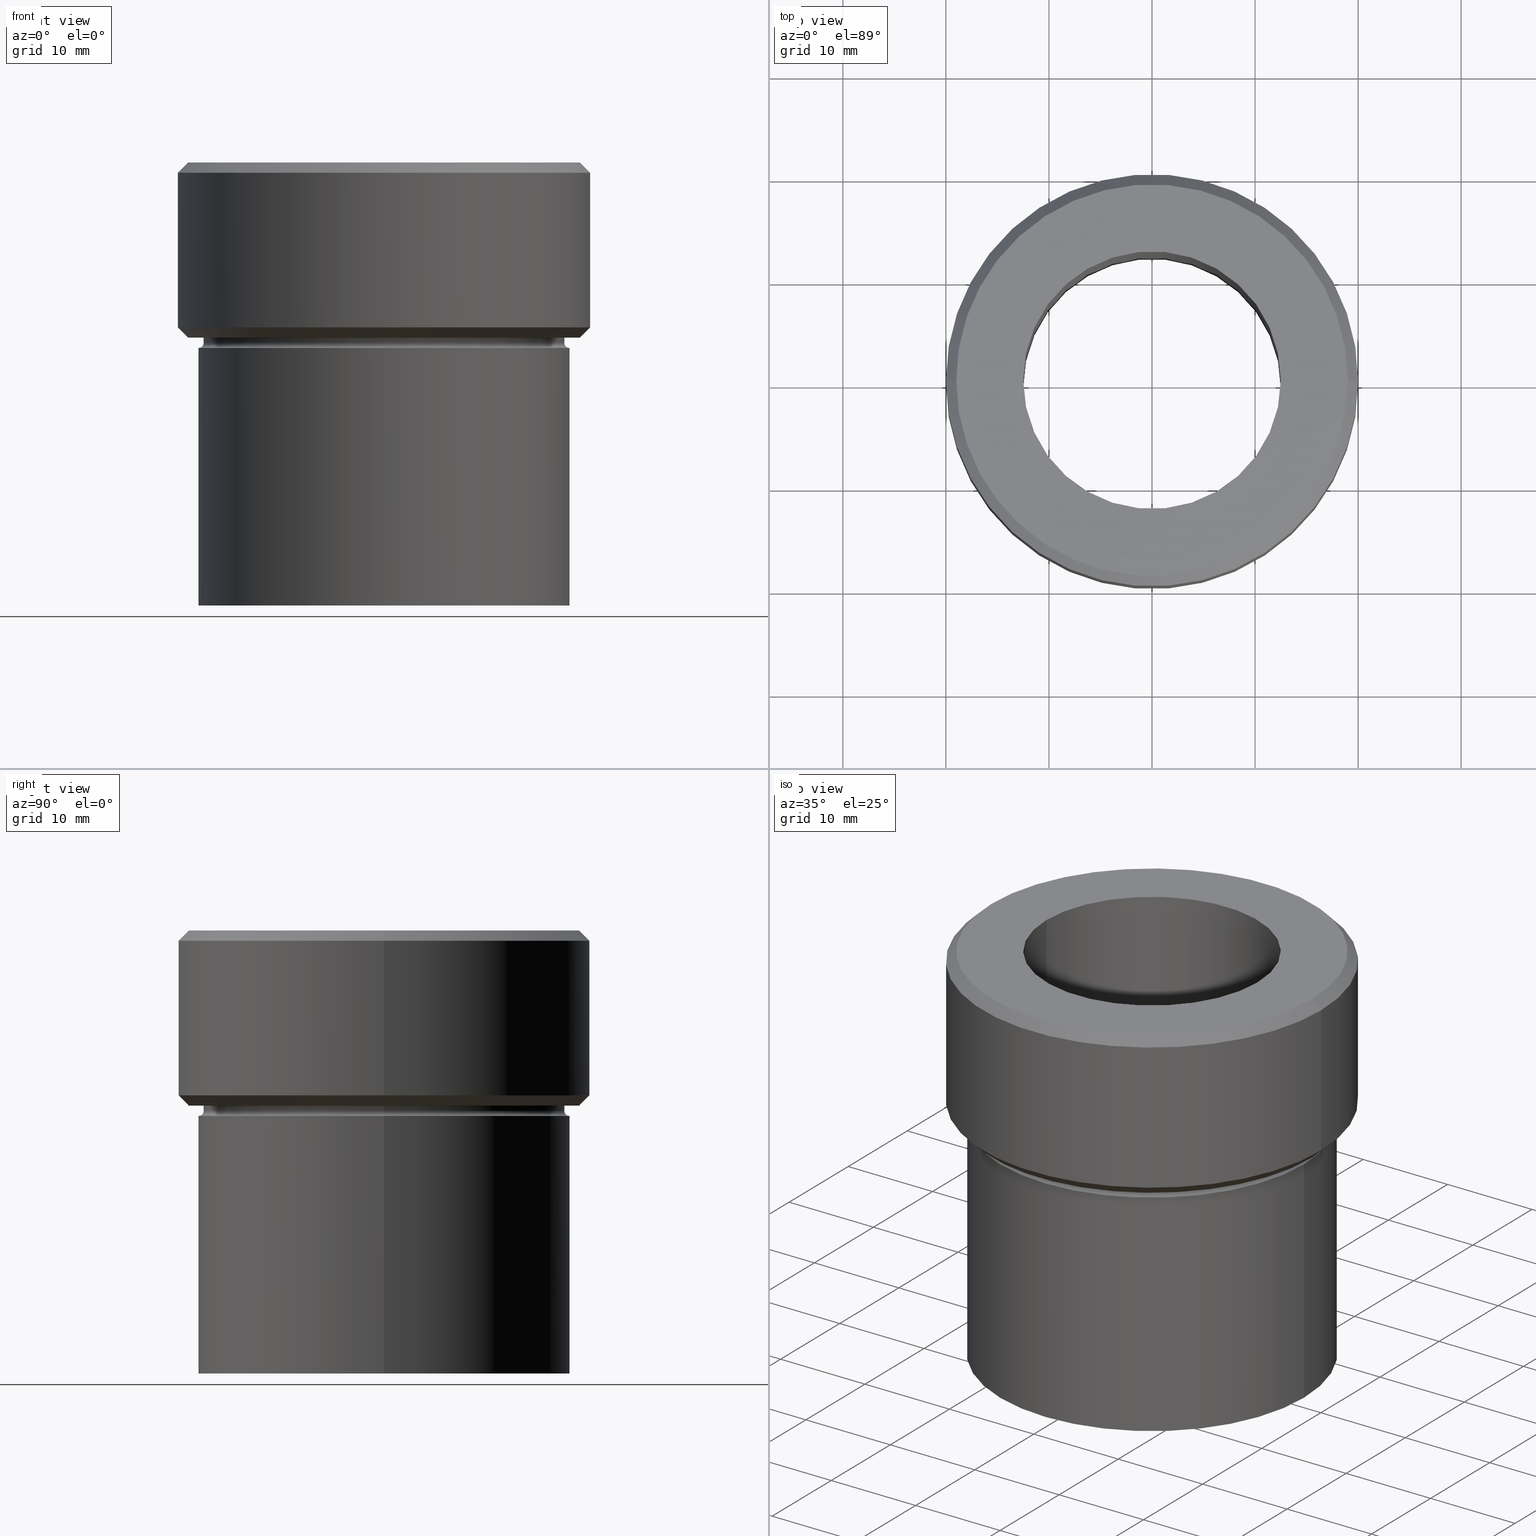
[diagram: canonical four-view strip — front | top / right | iso, engineering-drawing reading convention]
A machine part, canonical four-view strip (front | top / right | iso — engineering-drawing reading convention). The complete STEP part file that produces these views, byte-faithful:
ISO-10303-21;
HEADER;
FILE_DESCRIPTION (( 'STEP AP203' ),
    '1' );
FILE_NAME ('71b6.STEP',
    '2024-01-08T12:25:12',
    ( '' ),
    ( '' ),
    'SwSTEP 2.0',
    'SolidWorks 2019',
    '' );
FILE_SCHEMA (( 'CONFIG_CONTROL_DESIGN' ));
ENDSEC;

DATA;
#1 = CIRCLE ( 'NONE', #422, 18.00000000000000000 ) ;
#2 = VECTOR ( 'NONE', #78, 1000.000000000000000 ) ;
#3 = DIRECTION ( 'NONE',  ( 1.000000000000000000, 0.000000000000000000, 0.000000000000000000 ) ) ;
#4 = DIRECTION ( 'NONE',  ( -0.000000000000000000, -0.000000000000000000, 1.000000000000000000 ) ) ;
#5 = CARTESIAN_POINT ( 'NONE',  ( 17.49999999999999645, 0.000000000000000000, -17.49999999999999645 ) ) ;
#6 = CARTESIAN_POINT ( 'NONE',  ( 12.50000000000000000, 0.000000000000000000, 0.000000000000000000 ) ) ;
#7 = EDGE_CURVE ( 'NONE', #368, #102, #327, .T. ) ;
#8 = ORIENTED_EDGE ( 'NONE', *, *, #419, .F. ) ;
#9 = DIRECTION ( 'NONE',  ( -1.000000000000000000, 0.000000000000000000, 0.000000000000000000 ) ) ;
#10 = CIRCLE ( 'NONE', #386, 18.00000000000000355 ) ;
#11 = AXIS2_PLACEMENT_3D ( 'NONE', #447, #340, #424 ) ;
#12 = PERSON_AND_ORGANIZATION ( #14, #350 ) ;
#13 = DIRECTION ( 'NONE',  ( -1.000000000000000000, 0.000000000000000000, 0.000000000000000000 ) ) ;
#14 = PERSON ( 'NEUR�EN�', 'NEUR�EN�', 'NEUR�EN�', ('NEUR�EN�'), ('NEUR�EN�'), ('NEUR�EN�') ) ;
#15 = EDGE_CURVE ( 'NONE', #331, #32, #428, .T. ) ;
#16 = AXIS2_PLACEMENT_3D ( 'NONE', #69, #200, #402 ) ;
#17 = EDGE_LOOP ( 'NONE', ( #483, #308 ) ) ;
#18 = CIRCLE ( 'NONE', #497, 17.49999999999999645 ) ;
#19 = DIRECTION ( 'NONE',  ( -0.000000000000000000, -0.000000000000000000, 1.000000000000000000 ) ) ;
#20 = FACE_OUTER_BOUND ( 'NONE', #466, .T. ) ;
#21 = DIRECTION ( 'NONE',  ( 0.000000000000000000, 0.000000000000000000, -1.000000000000000000 ) ) ;
#22 = DIRECTION ( 'NONE',  ( -0.000000000000000000, -0.000000000000000000, 1.000000000000000000 ) ) ;
#23 = LINE ( 'NONE', #318, #305 ) ;
#24 = ADVANCED_FACE ( 'NONE', ( #418 ), #406, .T. ) ;
#25 = CARTESIAN_POINT ( 'NONE',  ( -19.00000000000000355, 2.388061258337338939E-15, -17.00000000000000000 ) ) ;
#26 = VERTEX_POINT ( 'NONE', #342 ) ;
#27 = AXIS2_PLACEMENT_3D ( 'NONE', #126, #131, #79 ) ;
#28 = LOCAL_TIME ( 13, 25, 12.00000000000000000, #255 ) ;
#29 = EDGE_LOOP ( 'NONE', ( #263, #333 ) ) ;
#30 = CYLINDRICAL_SURFACE ( 'NONE', #35, 12.50000000000000000 ) ;
#31 = FACE_OUTER_BOUND ( 'NONE', #523, .T. ) ;
#32 = VERTEX_POINT ( 'NONE', #44 ) ;
#33 = EDGE_CURVE ( 'NONE', #478, #102, #229, .T. ) ;
#34 = DIRECTION ( 'NONE',  ( -0.000000000000000000, -0.000000000000000000, 1.000000000000000000 ) ) ;
#35 = AXIS2_PLACEMENT_3D ( 'NONE', #435, #516, #395 ) ;
#36 = DIRECTION ( 'NONE',  ( 0.7071067811865474617, 8.659560562354932858E-17, -0.7071067811865474617 ) ) ;
#37 = APPROVAL_DATE_TIME ( #80, #225 ) ;
#38 = FACE_BOUND ( 'NONE', #29, .T. ) ;
#39 = SECURITY_CLASSIFICATION_LEVEL ( 'unclassified' ) ;
#40 = AXIS2_PLACEMENT_3D ( 'NONE', #107, #283, #436 ) ;
#41 = DIRECTION ( 'NONE',  ( 1.000000000000000000, 0.000000000000000000, 0.000000000000000000 ) ) ;
#42 = PERSON_AND_ORGANIZATION_ROLE ( 'creator' ) ;
#43 = VERTEX_POINT ( 'NONE', #219 ) ;
#44 = CARTESIAN_POINT ( 'NONE',  ( -12.50000000000000000, 1.530808498934191521E-15, -43.00000000000000000 ) ) ;
#45 = CC_DESIGN_APPROVAL ( #225, ( #470 ) ) ;
#46 = DATE_AND_TIME ( #94, #473 ) ;
#47 = CIRCLE ( 'NONE', #472, 18.00000000000000000 ) ;
#48 = AXIS2_PLACEMENT_3D ( 'NONE', #235, #21, #474 ) ;
#49 = PERSON_AND_ORGANIZATION ( #14, #350 ) ;
#50 = ORIENTED_EDGE ( 'NONE', *, *, #330, .F. ) ;
#51 = CARTESIAN_POINT ( 'NONE',  ( -17.49999999999999645, 2.143131898507867854E-15, 0.000000000000000000 ) ) ;
#52 = EDGE_LOOP ( 'NONE', ( #201, #356 ) ) ;
#53 = EDGE_CURVE ( 'NONE', #43, #102, #47, .T. ) ;
#54 = ORIENTED_EDGE ( 'NONE', *, *, #15, .T. ) ;
#55 = ORIENTED_EDGE ( 'NONE', *, *, #68, .T. ) ;
#56 = AXIS2_PLACEMENT_3D ( 'NONE', #227, #388, #343 ) ;
#57 = CARTESIAN_POINT ( 'NONE',  ( -12.50000000000000000, 1.530808498934191521E-15, -54.99999999999999289 ) ) ;
#58 = CARTESIAN_POINT ( 'NONE',  ( 0.000000000000000000, 0.000000000000000000, 0.000000000000000000 ) ) ;
#59 = DIRECTION ( 'NONE',  ( 1.224646799147353207E-16, 1.000000000000000000, 0.000000000000000000 ) ) ;
#60 = EDGE_CURVE ( 'NONE', #256, #478, #10, .T. ) ;
#61 = CARTESIAN_POINT ( 'NONE',  ( 0.000000000000000000, 0.000000000000000000, -17.00000000000000000 ) ) ;
#62 = PRODUCT_DEFINITION_SHAPE ( 'NONE', 'NONE',  #470 ) ;
#63 = FACE_OUTER_BOUND ( 'NONE', #258, .T. ) ;
#64 = CARTESIAN_POINT ( 'NONE',  ( -17.49999999999999645, 2.143131898507867854E-15, -17.00000000000000000 ) ) ;
#65 = VECTOR ( 'NONE', #158, 1000.000000000000114 ) ;
#66 = AXIS2_PLACEMENT_3D ( 'NONE', #61, #324, #202 ) ;
#67 = CARTESIAN_POINT ( 'NONE',  ( -18.00000000000000355, 2.204364238465235822E-15, 0.000000000000000000 ) ) ;
#68 = EDGE_CURVE ( 'NONE', #160, #368, #18, .T. ) ;
#69 = CARTESIAN_POINT ( 'NONE',  ( 18.00000000000000000, 0.000000000000000000, -17.49999999999999645 ) ) ;
#70 = ORIENTED_EDGE ( 'NONE', *, *, #162, .T. ) ;
#71 = LINE ( 'NONE', #371, #65 ) ;
#72 = PLANE ( 'NONE',  #339 ) ;
#73 = COORDINATED_UNIVERSAL_TIME_OFFSET ( 1, 0, .AHEAD. ) ;
#74 = AXIS2_PLACEMENT_3D ( 'NONE', #287, #291, #328 ) ;
#75 = ORIENTED_EDGE ( 'NONE', *, *, #273, .F. ) ;
#76 = ADVANCED_FACE ( 'NONE', ( #485 ), #179, .T. ) ;
#77 = ORIENTED_EDGE ( 'NONE', *, *, #15, .F. ) ;
#78 = DIRECTION ( 'NONE',  ( -0.000000000000000000, -0.000000000000000000, 1.000000000000000000 ) ) ;
#79 = DIRECTION ( 'NONE',  ( 1.000000000000000000, 0.000000000000000000, 0.000000000000000000 ) ) ;
#80 = DATE_AND_TIME ( #84, #321 ) ;
#81 = DIRECTION ( 'NONE',  ( -0.000000000000000000, -0.000000000000000000, 1.000000000000000000 ) ) ;
#82 = DATE_AND_TIME ( #87, #28 ) ;
#83 = VERTEX_POINT ( 'NONE', #488 ) ;
#84 = CALENDAR_DATE ( 2024, 8, 1 ) ;
#85 = DESIGN_CONTEXT ( 'detailed design', #223, 'design' ) ;
#86 = CARTESIAN_POINT ( 'NONE',  ( 0.000000000000000000, 0.000000000000000000, -17.00000000000000000 ) ) ;
#87 = CALENDAR_DATE ( 2024, 8, 1 ) ;
#88 = AXIS2_PLACEMENT_3D ( 'NONE', #170, #214, #484 ) ;
#89 = ORIENTED_EDGE ( 'NONE', *, *, #205, .F. ) ;
#90 = CARTESIAN_POINT ( 'NONE',  ( 19.00000000000001066, 2.388061258337339728E-15, 0.000000000000000000 ) ) ;
#91 = ADVANCED_FACE ( 'NONE', ( #301 ), #303, .T. ) ;
#92 = PLANE ( 'NONE',  #56 ) ;
#93 = DIRECTION ( 'NONE',  ( 0.000000000000000000, 0.000000000000000000, -1.000000000000000000 ) ) ;
#94 = CALENDAR_DATE ( 2024, 8, 1 ) ;
#95 = CARTESIAN_POINT ( 'NONE',  ( 0.000000000000000000, 0.000000000000000000, 0.000000000000000000 ) ) ;
#96 = AXIS2_PLACEMENT_3D ( 'NONE', #195, #19, #103 ) ;
#97 = EDGE_LOOP ( 'NONE', ( #54, #152, #217, #116 ) ) ;
#98 = CC_DESIGN_APPROVAL ( #183, ( #269 ) ) ;
#99 = CC_DESIGN_DATE_AND_TIME_ASSIGNMENT ( #232, #420, ( #470 ) ) ;
#100 = VERTEX_POINT ( 'NONE', #6 ) ;
#101 = FACE_OUTER_BOUND ( 'NONE', #296, .T. ) ;
#102 = VERTEX_POINT ( 'NONE', #530 ) ;
#103 = DIRECTION ( 'NONE',  ( -1.000000000000000000, 0.000000000000000000, 0.000000000000000000 ) ) ;
#104 = EDGE_CURVE ( 'NONE', #256, #43, #155, .T. ) ;
#105 = AXIS2_PLACEMENT_3D ( 'NONE', #383, #135, #307 ) ;
#106 = PRODUCT_DEFINITION_FORMATION_WITH_SPECIFIED_SOURCE ( 'LIBOVOLN�', '', #203, .NOT_KNOWN. ) ;
#107 = CARTESIAN_POINT ( 'NONE',  ( 0.000000000000000000, 0.000000000000000000, 0.000000000000000000 ) ) ;
#108 = ORIENTED_EDGE ( 'NONE', *, *, #236, .F. ) ;
#109 = VERTEX_POINT ( 'NONE', #234 ) ;
#110 = CYLINDRICAL_SURFACE ( 'NONE', #262, 18.00000000000000355 ) ;
#111 = EDGE_LOOP ( 'NONE', ( #108, #498, #119, #433 ) ) ;
#112 = ADVANCED_FACE ( 'NONE', ( #20 ), #417, .T. ) ;
#113 = EDGE_LOOP ( 'NONE', ( #404, #241, #254, #70 ) ) ;
#114 = DIRECTION ( 'NONE',  ( -0.000000000000000000, -0.000000000000000000, 1.000000000000000000 ) ) ;
#115 = CARTESIAN_POINT ( 'NONE',  ( 20.00000000000000000, 0.000000000000000000, -0.9999999999999904521 ) ) ;
#116 = ORIENTED_EDGE ( 'NONE', *, *, #306, .F. ) ;
#117 =( NAMED_UNIT ( * ) PLANE_ANGLE_UNIT ( ) SI_UNIT ( $, .RADIAN. ) );
#118 = EDGE_CURVE ( 'NONE', #368, #251, #325, .T. ) ;
#119 = ORIENTED_EDGE ( 'NONE', *, *, #463, .T. ) ;
#120 = MECHANICAL_CONTEXT ( 'NONE', #192, 'mechanical' ) ;
#121 = CC_DESIGN_APPROVAL ( #354, ( #106 ) ) ;
#122 = CARTESIAN_POINT ( 'NONE',  ( 0.000000000000000000, 0.000000000000000000, -54.99999999999999289 ) ) ;
#123 = VECTOR ( 'NONE', #196, 1000.000000000000000 ) ;
#124 = DIRECTION ( 'NONE',  ( -0.000000000000000000, -0.000000000000000000, 1.000000000000000000 ) ) ;
#125 = VECTOR ( 'NONE', #36, 1000.000000000000114 ) ;
#126 = CARTESIAN_POINT ( 'NONE',  ( 0.000000000000000000, 0.000000000000000000, -16.00000000000000355 ) ) ;
#127 = APPROVAL_ROLE ( '' ) ;
#128 = COORDINATED_UNIVERSAL_TIME_OFFSET ( 1, 0, .AHEAD. ) ;
#129 = CARTESIAN_POINT ( 'NONE',  ( 0.000000000000000000, 0.000000000000000000, 0.000000000000000000 ) ) ;
#130 = ORIENTED_EDGE ( 'NONE', *, *, #463, .F. ) ;
#131 = DIRECTION ( 'NONE',  ( -0.000000000000000000, -0.000000000000000000, 1.000000000000000000 ) ) ;
#132 = APPROVAL_ROLE ( '' ) ;
#133 = EDGE_CURVE ( 'NONE', #26, #83, #23, .T. ) ;
#134 = CIRCLE ( 'NONE', #477, 19.00000000000001066 ) ;
#135 = DIRECTION ( 'NONE',  ( 0.000000000000000000, 0.000000000000000000, -1.000000000000000000 ) ) ;
#136 = ORIENTED_EDGE ( 'NONE', *, *, #205, .T. ) ;
#137 = CARTESIAN_POINT ( 'NONE',  ( 0.000000000000000000, 0.000000000000000000, 0.000000000000000000 ) ) ;
#138 = ADVANCED_FACE ( 'NONE', ( #434 ), #475, .T. ) ;
#139 = CARTESIAN_POINT ( 'NONE',  ( -20.00000000000000000, 2.449293598294706513E-15, 0.000000000000000000 ) ) ;
#140 =( GEOMETRIC_REPRESENTATION_CONTEXT ( 3 ) GLOBAL_UNCERTAINTY_ASSIGNED_CONTEXT ( ( #193 ) ) GLOBAL_UNIT_ASSIGNED_CONTEXT ( ( #207, #117, #409 ) ) REPRESENTATION_CONTEXT ( 'NONE', 'WORKASPACE' ) );
#141 = CIRCLE ( 'NONE', #11, 20.00000000000000000 ) ;
#142 = CARTESIAN_POINT ( 'NONE',  ( 12.50000000000000000, 0.000000000000000000, -54.99999999999999289 ) ) ;
#143 = DIRECTION ( 'NONE',  ( 0.000000000000000000, 0.000000000000000000, -1.000000000000000000 ) ) ;
#144 = DATE_AND_TIME ( #171, #385 ) ;
#145 = ORIENTED_EDGE ( 'NONE', *, *, #454, .F. ) ;
#146 = CARTESIAN_POINT ( 'NONE',  ( -18.00000000000000000, 2.204364238465235428E-15, -17.49999999999999645 ) ) ;
#147 = EDGE_LOOP ( 'NONE', ( #8, #341, #184, #136 ) ) ;
#148 = CARTESIAN_POINT ( 'NONE',  ( -19.00000000000001066, 0.000000000000000000, 0.000000000000000000 ) ) ;
#149 = CC_DESIGN_SECURITY_CLASSIFICATION ( #269, ( #106 ) ) ;
#150 = CIRCLE ( 'NONE', #48, 12.50000000000000000 ) ;
#151 = ORIENTED_EDGE ( 'NONE', *, *, #300, .F. ) ;
#152 = ORIENTED_EDGE ( 'NONE', *, *, #319, .T. ) ;
#153 = CARTESIAN_POINT ( 'NONE',  ( 0.000000000000000000, 0.000000000000000000, 0.000000000000000000 ) ) ;
#154 = CC_DESIGN_PERSON_AND_ORGANIZATION_ASSIGNMENT ( #257, #415, ( #106 ) ) ;
#155 = LINE ( 'NONE', #67, #123 ) ;
#156 = CARTESIAN_POINT ( 'NONE',  ( 0.000000000000000000, 0.000000000000000000, -0.9999999999999904521 ) ) ;
#157 = VERTEX_POINT ( 'NONE', #64 ) ;
#158 = DIRECTION ( 'NONE',  ( -0.7071067811865474617, 8.659560562354932858E-17, 0.7071067811865474617 ) ) ;
#159 = AXIS2_PLACEMENT_3D ( 'NONE', #494, #304, #177 ) ;
#160 = VERTEX_POINT ( 'NONE', #211 ) ;
#161 = DIRECTION ( 'NONE',  ( 1.000000000000000000, 0.000000000000000000, 0.000000000000000000 ) ) ;
#162 = EDGE_CURVE ( 'NONE', #100, #109, #495, .T. ) ;
#163 = ORIENTED_EDGE ( 'NONE', *, *, #419, .T. ) ;
#164 = EDGE_LOOP ( 'NONE', ( #77, #443 ) ) ;
#165 = DIRECTION ( 'NONE',  ( -0.000000000000000000, -0.000000000000000000, 1.000000000000000000 ) ) ;
#166 = CARTESIAN_POINT ( 'NONE',  ( 0.000000000000000000, 0.000000000000000000, -43.00000000000000000 ) ) ;
#167 = CARTESIAN_POINT ( 'NONE',  ( 0.000000000000000000, 0.000000000000000000, 0.000000000000000000 ) ) ;
#168 = CIRCLE ( 'NONE', #467, 20.00000000000000000 ) ;
#169 = CIRCLE ( 'NONE', #378, 19.00000000000000355 ) ;
#170 = CARTESIAN_POINT ( 'NONE',  ( 0.000000000000000000, 0.000000000000000000, 0.000000000000000000 ) ) ;
#171 = CALENDAR_DATE ( 2024, 8, 1 ) ;
#172 = ADVANCED_FACE ( 'NONE', ( #38, #401 ), #248, .T. ) ;
#173 = PERSON_AND_ORGANIZATION ( #14, #350 ) ;
#174 = FACE_OUTER_BOUND ( 'NONE', #346, .T. ) ;
#175 = DIRECTION ( 'NONE',  ( -0.000000000000000000, -0.000000000000000000, 1.000000000000000000 ) ) ;
#176 = DIRECTION ( 'NONE',  ( 1.000000000000000000, 0.000000000000000000, 0.000000000000000000 ) ) ;
#177 = DIRECTION ( 'NONE',  ( 1.000000000000000000, 0.000000000000000000, 0.000000000000000000 ) ) ;
#178 = VECTOR ( 'NONE', #527, 1000.000000000000000 ) ;
#179 = CONICAL_SURFACE ( 'NONE', #27, 20.00000000000000000, 0.7853981633974482790 ) ;
#180 = CIRCLE ( 'NONE', #511, 17.49999999999999645 ) ;
#181 = ADVANCED_FACE ( 'NONE', ( #253 ), #526, .F. ) ;
#182 = ORIENTED_EDGE ( 'NONE', *, *, #104, .T. ) ;
#183 = APPROVAL ( #502, 'NEUR�EN�' ) ;
#184 = ORIENTED_EDGE ( 'NONE', *, *, #7, .T. ) ;
#185 = DIRECTION ( 'NONE',  ( -0.000000000000000000, -0.000000000000000000, 1.000000000000000000 ) ) ;
#186 = PERSON_AND_ORGANIZATION ( #14, #350 ) ;
#187 = TOROIDAL_SURFACE ( 'NONE', #159, 18.00000000000000000, 0.5000000000000000000 ) ;
#188 = ORIENTED_EDGE ( 'NONE', *, *, #421, .F. ) ;
#189 = LINE ( 'NONE', #57, #397 ) ;
#190 = APPLICATION_PROTOCOL_DEFINITION ( 'international standard', 'config_control_design', 1994, #192 ) ;
#191 = EDGE_CURVE ( 'NONE', #109, #100, #359, .T. ) ;
#192 = APPLICATION_CONTEXT ( 'configuration controlled 3d designs of mechanical parts and assemblies' ) ;
#193 = UNCERTAINTY_MEASURE_WITH_UNIT (LENGTH_MEASURE( 1.000000000000000082E-05 ), #207, 'distance_accuracy_value', 'NONE');
#194 = DIRECTION ( 'NONE',  ( -1.000000000000000000, 1.224646799147349509E-16, 0.000000000000000000 ) ) ;
#195 = CARTESIAN_POINT ( 'NONE',  ( 0.000000000000000000, 0.000000000000000000, -16.00000000000000355 ) ) ;
#196 = DIRECTION ( 'NONE',  ( -0.000000000000000000, -0.000000000000000000, 1.000000000000000000 ) ) ;
#197 = FACE_BOUND ( 'NONE', #164, .T. ) ;
#198 = AXIS2_PLACEMENT_3D ( 'NONE', #377, #81, #41 ) ;
#199 = CC_DESIGN_PERSON_AND_ORGANIZATION_ASSIGNMENT ( #12, #275, ( #470 ) ) ;
#200 = DIRECTION ( 'NONE',  ( 0.000000000000000000, -1.000000000000000000, 0.000000000000000000 ) ) ;
#201 = ORIENTED_EDGE ( 'NONE', *, *, #300, .T. ) ;
#202 = DIRECTION ( 'NONE',  ( 1.000000000000000000, 0.000000000000000000, 0.000000000000000000 ) ) ;
#203 = PRODUCT ( '71b6', '71b6', '', ( #120 ) ) ;
#204 = MANIFOLD_SOLID_BREP ( 'Odebrat vysunut�m1', #456 ) ;
#205 = EDGE_CURVE ( 'NONE', #102, #43, #1, .T. ) ;
#206 = ORIENTED_EDGE ( 'NONE', *, *, #531, .F. ) ;
#207 =( LENGTH_UNIT ( ) NAMED_UNIT ( * ) SI_UNIT ( .MILLI., .METRE. ) );
#208 = AXIS2_PLACEMENT_3D ( 'NONE', #480, #93, #9 ) ;
#209 = AXIS2_PLACEMENT_3D ( 'NONE', #167, #482, #441 ) ;
#210 = ORIENTED_EDGE ( 'NONE', *, *, #476, .T. ) ;
#211 = CARTESIAN_POINT ( 'NONE',  ( -17.49999999999999645, 2.143131898507867854E-15, -17.49999999999999645 ) ) ;
#212 = LINE ( 'NONE', #299, #2 ) ;
#213 = CARTESIAN_POINT ( 'NONE',  ( 0.000000000000000000, 0.000000000000000000, 0.000000000000000000 ) ) ;
#214 = DIRECTION ( 'NONE',  ( -0.000000000000000000, -0.000000000000000000, 1.000000000000000000 ) ) ;
#215 = DIRECTION ( 'NONE',  ( 0.000000000000000000, 0.000000000000000000, -1.000000000000000000 ) ) ;
#216 = CARTESIAN_POINT ( 'NONE',  ( 0.000000000000000000, 0.000000000000000000, -17.49999999999999645 ) ) ;
#217 = ORIENTED_EDGE ( 'NONE', *, *, #191, .T. ) ;
#218 = CARTESIAN_POINT ( 'NONE',  ( 0.000000000000000000, 0.000000000000000000, -17.00000000000000000 ) ) ;
#219 = CARTESIAN_POINT ( 'NONE',  ( -18.00000000000000000, 2.204364238465235428E-15, -18.00000000000000000 ) ) ;
#220 = PERSON_AND_ORGANIZATION_ROLE ( 'classification_officer' ) ;
#221 = PERSON_AND_ORGANIZATION ( #14, #350 ) ;
#222 = EDGE_LOOP ( 'NONE', ( #490, #398, #393, #130 ) ) ;
#223 = APPLICATION_CONTEXT ( 'configuration controlled 3d designs of mechanical parts and assemblies' ) ;
#224 = CARTESIAN_POINT ( 'NONE',  ( 0.000000000000000000, 0.000000000000000000, 0.000000000000000000 ) ) ;
#225 = APPROVAL ( #413, 'NEUR�EN�' ) ;
#226 = ORIENTED_EDGE ( 'NONE', *, *, #53, .T. ) ;
#227 = CARTESIAN_POINT ( 'NONE',  ( 0.000000000000000000, 20.00000000000000000, -17.00000000000000000 ) ) ;
#228 = LINE ( 'NONE', #51, #286 ) ;
#229 = LINE ( 'NONE', #260, #178 ) ;
#230 = AXIS2_PLACEMENT_3D ( 'NONE', #369, #519, #365 ) ;
#231 = ORIENTED_EDGE ( 'NONE', *, *, #454, .T. ) ;
#232 = DATE_AND_TIME ( #271, #487 ) ;
#233 = LINE ( 'NONE', #142, #348 ) ;
#234 = CARTESIAN_POINT ( 'NONE',  ( -12.50000000000000000, 1.530808498934191521E-15, 0.000000000000000000 ) ) ;
#235 = CARTESIAN_POINT ( 'NONE',  ( 0.000000000000000000, 0.000000000000000000, -43.00000000000000000 ) ) ;
#236 = EDGE_CURVE ( 'NONE', #440, #372, #357, .T. ) ;
#237 = CIRCLE ( 'NONE', #373, 18.00000000000000355 ) ;
#238 = ORIENTED_EDGE ( 'NONE', *, *, #394, .F. ) ;
#239 = ORIENTED_EDGE ( 'NONE', *, *, #524, .F. ) ;
#240 = ADVANCED_FACE ( 'NONE', ( #101 ), #187, .F. ) ;
#241 = ORIENTED_EDGE ( 'NONE', *, *, #408, .T. ) ;
#242 = APPROVAL_PERSON_ORGANIZATION ( #49, #354, #127 ) ;
#243 = ORIENTED_EDGE ( 'NONE', *, *, #7, .F. ) ;
#244 = CIRCLE ( 'NONE', #512, 0.5000000000000004441 ) ;
#245 = TOROIDAL_SURFACE ( 'NONE', #407, 18.00000000000000000, 0.5000000000000000000 ) ;
#246 = DIRECTION ( 'NONE',  ( 1.000000000000000000, 0.000000000000000000, 0.000000000000000000 ) ) ;
#247 = PRODUCT_RELATED_PRODUCT_CATEGORY ( 'detail', '', ( #203 ) ) ;
#248 = PLANE ( 'NONE',  #209 ) ;
#249 = EDGE_LOOP ( 'NONE', ( #50, #518 ) ) ;
#250 = ADVANCED_FACE ( 'NONE', ( #349, #461 ), #92, .T. ) ;
#251 = VERTEX_POINT ( 'NONE', #353 ) ;
#252 = APPROVAL_PERSON_ORGANIZATION ( #345, #225, #132 ) ;
#253 = FACE_OUTER_BOUND ( 'NONE', #97, .T. ) ;
#254 = ORIENTED_EDGE ( 'NONE', *, *, #306, .T. ) ;
#255 = COORDINATED_UNIVERSAL_TIME_OFFSET ( 1, 0, .AHEAD. ) ;
#256 = VERTEX_POINT ( 'NONE', #309 ) ;
#257 = PERSON_AND_ORGANIZATION ( #14, #350 ) ;
#258 = EDGE_LOOP ( 'NONE', ( #289, #517, #290, #376 ) ) ;
#259 = CC_DESIGN_PERSON_AND_ORGANIZATION_ASSIGNMENT ( #412, #42, ( #106 ) ) ;
#260 = CARTESIAN_POINT ( 'NONE',  ( 18.00000000000000355, 0.000000000000000000, 0.000000000000000000 ) ) ;
#261 = ORIENTED_EDGE ( 'NONE', *, *, #273, .T. ) ;
#262 = AXIS2_PLACEMENT_3D ( 'NONE', #153, #22, #272 ) ;
#263 = ORIENTED_EDGE ( 'NONE', *, *, #162, .F. ) ;
#264 = DIRECTION ( 'NONE',  ( 0.000000000000000000, 0.000000000000000000, -1.000000000000000000 ) ) ;
#265 = CARTESIAN_POINT ( 'NONE',  ( 0.000000000000000000, 0.000000000000000000, -18.00000000000000000 ) ) ;
#266 = EDGE_CURVE ( 'NONE', #505, #479, #134, .T. ) ;
#267 = CARTESIAN_POINT ( 'NONE',  ( 18.00000000000000355, 0.000000000000000000, -43.00000000000000000 ) ) ;
#268 = AXIS2_PLACEMENT_3D ( 'NONE', #396, #427, #246 ) ;
#269 = SECURITY_CLASSIFICATION ( '', '', #39 ) ;
#270 = EDGE_LOOP ( 'NONE', ( #281, #182, #89, #515 ) ) ;
#271 = CALENDAR_DATE ( 2024, 8, 1 ) ;
#272 = DIRECTION ( 'NONE',  ( 1.000000000000000000, 0.000000000000000000, 0.000000000000000000 ) ) ;
#273 = EDGE_CURVE ( 'NONE', #479, #505, #430, .T. ) ;
#274 = DIRECTION ( 'NONE',  ( 1.000000000000000000, 0.000000000000000000, 0.000000000000000000 ) ) ;
#275 = PERSON_AND_ORGANIZATION_ROLE ( 'creator' ) ;
#276 = AXIS2_PLACEMENT_3D ( 'NONE', #122, #165, #335 ) ;
#277 = CIRCLE ( 'NONE', #105, 20.00000000000000000 ) ;
#278 = DIRECTION ( 'NONE',  ( 0.7071067811865474617, 0.000000000000000000, 0.7071067811865474617 ) ) ;
#279 = DIRECTION ( 'NONE',  ( -0.7071067811865474617, 0.000000000000000000, -0.7071067811865474617 ) ) ;
#280 = ADVANCED_FACE ( 'NONE', ( #399 ), #30, .F. ) ;
#281 = ORIENTED_EDGE ( 'NONE', *, *, #330, .T. ) ;
#282 = DIRECTION ( 'NONE',  ( 1.000000000000000000, 0.000000000000000000, 0.000000000000000000 ) ) ;
#283 = DIRECTION ( 'NONE',  ( -0.000000000000000000, -0.000000000000000000, 1.000000000000000000 ) ) ;
#284 = ORIENTED_EDGE ( 'NONE', *, *, #118, .T. ) ;
#285 = ORIENTED_EDGE ( 'NONE', *, *, #524, .T. ) ;
#286 = VECTOR ( 'NONE', #175, 1000.000000000000000 ) ;
#287 = CARTESIAN_POINT ( 'NONE',  ( 0.000000000000000000, 0.000000000000000000, -16.00000000000000355 ) ) ;
#288 = VECTOR ( 'NONE', #429, 1000.000000000000000 ) ;
#289 = ORIENTED_EDGE ( 'NONE', *, *, #104, .F. ) ;
#290 = ORIENTED_EDGE ( 'NONE', *, *, #33, .T. ) ;
#291 = DIRECTION ( 'NONE',  ( -0.000000000000000000, -0.000000000000000000, 1.000000000000000000 ) ) ;
#292 = ADVANCED_FACE ( 'NONE', ( #63 ), #110, .T. ) ;
#293 = LINE ( 'NONE', #405, #125 ) ;
#294 = DIRECTION ( 'NONE',  ( -1.000000000000000000, 0.000000000000000000, -0.000000000000000000 ) ) ;
#295 = AXIS2_PLACEMENT_3D ( 'NONE', #469, #114, #161 ) ;
#296 = EDGE_LOOP ( 'NONE', ( #452, #163, #226, #243 ) ) ;
#297 = CIRCLE ( 'NONE', #312, 17.49999999999999645 ) ;
#298 = ADVANCED_BREP_SHAPE_REPRESENTATION ( '71b6', ( #204, #358 ), #140 ) ;
#299 = CARTESIAN_POINT ( 'NONE',  ( 20.00000000000000000, 0.000000000000000000, 0.000000000000000000 ) ) ;
#300 = EDGE_CURVE ( 'NONE', #251, #157, #338, .T. ) ;
#301 = FACE_OUTER_BOUND ( 'NONE', #222, .T. ) ;
#302 = ORIENTED_EDGE ( 'NONE', *, *, #337, .T. ) ;
#303 = CYLINDRICAL_SURFACE ( 'NONE', #198, 20.00000000000000000 ) ;
#304 = DIRECTION ( 'NONE',  ( -0.000000000000000000, -0.000000000000000000, 1.000000000000000000 ) ) ;
#305 = VECTOR ( 'NONE', #278, 1000.000000000000114 ) ;
#306 = EDGE_CURVE ( 'NONE', #331, #100, #233, .T. ) ;
#307 = DIRECTION ( 'NONE',  ( 1.000000000000000000, 0.000000000000000000, 0.000000000000000000 ) ) ;
#308 = ORIENTED_EDGE ( 'NONE', *, *, #531, .T. ) ;
#309 = CARTESIAN_POINT ( 'NONE',  ( -18.00000000000000355, 2.204364238465235822E-15, -43.00000000000000000 ) ) ;
#310 = SHAPE_DEFINITION_REPRESENTATION ( #62, #298 ) ;
#311 = DIRECTION ( 'NONE',  ( -0.000000000000000000, -0.000000000000000000, 1.000000000000000000 ) ) ;
#312 = AXIS2_PLACEMENT_3D ( 'NONE', #496, #311, #491 ) ;
#313 = EDGE_LOOP ( 'NONE', ( #302, #210, #151, #507 ) ) ;
#314 = EDGE_CURVE ( 'NONE', #83, #440, #457, .T. ) ;
#315 = ORIENTED_EDGE ( 'NONE', *, *, #133, .T. ) ;
#316 = ORIENTED_EDGE ( 'NONE', *, *, #445, .F. ) ;
#317 = DIRECTION ( 'NONE',  ( -0.000000000000000000, -0.000000000000000000, 1.000000000000000000 ) ) ;
#318 = CARTESIAN_POINT ( 'NONE',  ( 20.00000000000000000, 0.000000000000000000, -16.00000000000000355 ) ) ;
#319 = EDGE_CURVE ( 'NONE', #32, #109, #189, .T. ) ;
#320 = CONICAL_SURFACE ( 'NONE', #74, 20.00000000000000000, 0.7853981633974482790 ) ;
#321 = LOCAL_TIME ( 13, 25, 12.00000000000000000, #128 ) ;
#322 = DIRECTION ( 'NONE',  ( 0.000000000000000000, 0.000000000000000000, -1.000000000000000000 ) ) ;
#323 = DIRECTION ( 'NONE',  ( -1.000000000000000000, 0.000000000000000000, 0.000000000000000000 ) ) ;
#324 = DIRECTION ( 'NONE',  ( -0.000000000000000000, -0.000000000000000000, 1.000000000000000000 ) ) ;
#325 = LINE ( 'NONE', #471, #288 ) ;
#326 = ORIENTED_EDGE ( 'NONE', *, *, #266, .F. ) ;
#327 = CIRCLE ( 'NONE', #16, 0.5000000000000004441 ) ;
#328 = DIRECTION ( 'NONE',  ( 1.000000000000000000, 0.000000000000000000, 0.000000000000000000 ) ) ;
#329 = CARTESIAN_POINT ( 'NONE',  ( 0.000000000000000000, 0.000000000000000000, -17.00000000000000000 ) ) ;
#330 = EDGE_CURVE ( 'NONE', #478, #256, #237, .T. ) ;
#331 = VERTEX_POINT ( 'NONE', #352 ) ;
#332 = DIRECTION ( 'NONE',  ( 1.000000000000000000, 0.000000000000000000, 0.000000000000000000 ) ) ;
#333 = ORIENTED_EDGE ( 'NONE', *, *, #191, .F. ) ;
#334 = EDGE_LOOP ( 'NONE', ( #239, #387, #315, #361 ) ) ;
#335 = DIRECTION ( 'NONE',  ( 1.000000000000000000, 0.000000000000000000, 0.000000000000000000 ) ) ;
#336 = DIRECTION ( 'NONE',  ( -0.000000000000000000, -0.000000000000000000, 1.000000000000000000 ) ) ;
#337 = EDGE_CURVE ( 'NONE', #368, #160, #297, .T. ) ;
#338 = CIRCLE ( 'NONE', #66, 17.49999999999999645 ) ;
#339 = AXIS2_PLACEMENT_3D ( 'NONE', #375, #215, #294 ) ;
#340 = DIRECTION ( 'NONE',  ( -0.000000000000000000, -0.000000000000000000, 1.000000000000000000 ) ) ;
#341 = ORIENTED_EDGE ( 'NONE', *, *, #337, .F. ) ;
#342 = CARTESIAN_POINT ( 'NONE',  ( 19.00000000000000355, 0.000000000000000000, -17.00000000000000000 ) ) ;
#343 = DIRECTION ( 'NONE',  ( -1.000000000000000000, 0.000000000000000000, -0.000000000000000000 ) ) ;
#344 = DIRECTION ( 'NONE',  ( -0.000000000000000000, -0.000000000000000000, 1.000000000000000000 ) ) ;
#345 = PERSON_AND_ORGANIZATION ( #14, #350 ) ;
#346 = EDGE_LOOP ( 'NONE', ( #206, #285, #460, #382 ) ) ;
#347 = EDGE_CURVE ( 'NONE', #444, #372, #277, .T. ) ;
#348 = VECTOR ( 'NONE', #317, 1000.000000000000000 ) ;
#349 = FACE_OUTER_BOUND ( 'NONE', #17, .T. ) ;
#350 = ORGANIZATION ( 'NEUR�EN�', 'NEUR�EN�', '' ) ;
#351 = DATE_TIME_ROLE ( 'classification_date' ) ;
#352 = CARTESIAN_POINT ( 'NONE',  ( 12.50000000000000000, 0.000000000000000000, -43.00000000000000000 ) ) ;
#353 = CARTESIAN_POINT ( 'NONE',  ( 17.49999999999999645, 0.000000000000000000, -17.00000000000000000 ) ) ;
#354 = APPROVAL ( #355, 'NEUR�EN�' ) ;
#355 = APPROVAL_STATUS ( 'not_yet_approved' ) ;
#356 = ORIENTED_EDGE ( 'NONE', *, *, #445, .T. ) ;
#357 = LINE ( 'NONE', #139, #486 ) ;
#358 = AXIS2_PLACEMENT_3D ( 'NONE', #213, #416, #176 ) ;
#359 = CIRCLE ( 'NONE', #88, 12.50000000000000000 ) ;
#360 = COORDINATED_UNIVERSAL_TIME_OFFSET ( 1, 0, .AHEAD. ) ;
#361 = ORIENTED_EDGE ( 'NONE', *, *, #374, .F. ) ;
#362 = ADVANCED_FACE ( 'NONE', ( #459 ), #379, .T. ) ;
#363 = DIRECTION ( 'NONE',  ( -0.000000000000000000, -0.000000000000000000, 1.000000000000000000 ) ) ;
#364 = DIRECTION ( 'NONE',  ( -1.000000000000000000, 0.000000000000000000, 0.000000000000000000 ) ) ;
#365 = DIRECTION ( 'NONE',  ( 1.000000000000000000, 0.000000000000000000, 0.000000000000000000 ) ) ;
#366 = DIRECTION ( 'NONE',  ( -0.000000000000000000, -0.000000000000000000, 1.000000000000000000 ) ) ;
#367 = VECTOR ( 'NONE', #279, 1000.000000000000114 ) ;
#368 = VERTEX_POINT ( 'NONE', #5 ) ;
#369 = CARTESIAN_POINT ( 'NONE',  ( 0.000000000000000000, 0.000000000000000000, 0.000000000000000000 ) ) ;
#370 = ADVANCED_FACE ( 'NONE', ( #174 ), #320, .T. ) ;
#371 = CARTESIAN_POINT ( 'NONE',  ( -20.00000000000000000, 2.449293598294706513E-15, -16.00000000000000355 ) ) ;
#372 = VERTEX_POINT ( 'NONE', #403 ) ;
#373 = AXIS2_PLACEMENT_3D ( 'NONE', #509, #366, #525 ) ;
#374 = EDGE_CURVE ( 'NONE', #440, #83, #141, .T. ) ;
#375 = CARTESIAN_POINT ( 'NONE',  ( 0.000000000000000000, 18.00000000000000355, -43.00000000000000000 ) ) ;
#376 = ORIENTED_EDGE ( 'NONE', *, *, #53, .F. ) ;
#377 = CARTESIAN_POINT ( 'NONE',  ( 0.000000000000000000, 0.000000000000000000, 0.000000000000000000 ) ) ;
#378 = AXIS2_PLACEMENT_3D ( 'NONE', #329, #143, #323 ) ;
#379 = CYLINDRICAL_SURFACE ( 'NONE', #380, 18.00000000000000355 ) ;
#380 = AXIS2_PLACEMENT_3D ( 'NONE', #224, #501, #3 ) ;
#381 = DIRECTION ( 'NONE',  ( -0.000000000000000000, -0.000000000000000000, 1.000000000000000000 ) ) ;
#382 = ORIENTED_EDGE ( 'NONE', *, *, #133, .F. ) ;
#383 = CARTESIAN_POINT ( 'NONE',  ( 0.000000000000000000, 0.000000000000000000, -0.9999999999999904521 ) ) ;
#384 = DIRECTION ( 'NONE',  ( 1.000000000000000000, 0.000000000000000000, 0.000000000000000000 ) ) ;
#385 = LOCAL_TIME ( 13, 25, 12.00000000000000000, #73 ) ;
#386 = AXIS2_PLACEMENT_3D ( 'NONE', #166, #344, #451 ) ;
#387 = ORIENTED_EDGE ( 'NONE', *, *, #506, .F. ) ;
#388 = DIRECTION ( 'NONE',  ( 0.000000000000000000, 0.000000000000000000, -1.000000000000000000 ) ) ;
#389 = APPROVAL_DATE_TIME ( #46, #183 ) ;
#390 = EDGE_LOOP ( 'NONE', ( #481, #261 ) ) ;
#391 = ADVANCED_FACE ( 'NONE', ( #31 ), #431, .T. ) ;
#392 = CARTESIAN_POINT ( 'NONE',  ( 0.000000000000000000, 0.000000000000000000, -18.00000000000000000 ) ) ;
#393 = ORIENTED_EDGE ( 'NONE', *, *, #394, .T. ) ;
#394 = EDGE_CURVE ( 'NONE', #372, #444, #168, .T. ) ;
#395 = DIRECTION ( 'NONE',  ( 1.000000000000000000, 0.000000000000000000, 0.000000000000000000 ) ) ;
#396 = CARTESIAN_POINT ( 'NONE',  ( 0.000000000000000000, 0.000000000000000000, 0.000000000000000000 ) ) ;
#397 = VECTOR ( 'NONE', #363, 1000.000000000000000 ) ;
#398 = ORIENTED_EDGE ( 'NONE', *, *, #236, .T. ) ;
#399 = FACE_OUTER_BOUND ( 'NONE', #113, .T. ) ;
#400 = CC_DESIGN_DATE_AND_TIME_ASSIGNMENT ( #144, #351, ( #269 ) ) ;
#401 = FACE_OUTER_BOUND ( 'NONE', #390, .T. ) ;
#402 = DIRECTION ( 'NONE',  ( 0.000000000000000000, 0.000000000000000000, -1.000000000000000000 ) ) ;
#403 = CARTESIAN_POINT ( 'NONE',  ( -20.00000000000000000, 2.449293598294706513E-15, -0.9999999999999904521 ) ) ;
#404 = ORIENTED_EDGE ( 'NONE', *, *, #319, .F. ) ;
#405 = CARTESIAN_POINT ( 'NONE',  ( 19.00000000000001066, 2.326828918379972548E-15, 0.000000000000000000 ) ) ;
#406 = CONICAL_SURFACE ( 'NONE', #449, 19.00000000000001066, 0.7853981633974482790 ) ;
#407 = AXIS2_PLACEMENT_3D ( 'NONE', #521, #124, #529 ) ;
#408 = EDGE_CURVE ( 'NONE', #32, #331, #150, .T. ) ;
#409 =( NAMED_UNIT ( * ) SI_UNIT ( $, .STERADIAN. ) SOLID_ANGLE_UNIT ( ) );
#410 = DIRECTION ( 'NONE',  ( 1.000000000000000000, 0.000000000000000000, 0.000000000000000000 ) ) ;
#411 = ORIENTED_EDGE ( 'NONE', *, *, #476, .F. ) ;
#412 = PERSON_AND_ORGANIZATION ( #14, #350 ) ;
#413 = APPROVAL_STATUS ( 'not_yet_approved' ) ;
#414 = FACE_OUTER_BOUND ( 'NONE', #147, .T. ) ;
#415 = PERSON_AND_ORGANIZATION_ROLE ( 'design_supplier' ) ;
#416 = DIRECTION ( 'NONE',  ( 0.000000000000000000, 0.000000000000000000, 1.000000000000000000 ) ) ;
#417 = CONICAL_SURFACE ( 'NONE', #522, 19.00000000000001066, 0.7853981633974482790 ) ;
#418 = FACE_OUTER_BOUND ( 'NONE', #493, .T. ) ;
#419 = EDGE_CURVE ( 'NONE', #160, #43, #244, .T. ) ;
#420 = DATE_TIME_ROLE ( 'creation_date' ) ;
#421 = EDGE_CURVE ( 'NONE', #505, #372, #510, .T. ) ;
#422 = AXIS2_PLACEMENT_3D ( 'NONE', #392, #185, #423 ) ;
#423 = DIRECTION ( 'NONE',  ( 1.000000000000000000, 0.000000000000000000, 0.000000000000000000 ) ) ;
#424 = DIRECTION ( 'NONE',  ( -1.000000000000000000, 0.000000000000000000, 0.000000000000000000 ) ) ;
#425 = VERTEX_POINT ( 'NONE', #25 ) ;
#426 = APPROVAL_ROLE ( '' ) ;
#427 = DIRECTION ( 'NONE',  ( -0.000000000000000000, -0.000000000000000000, 1.000000000000000000 ) ) ;
#428 = CIRCLE ( 'NONE', #208, 12.50000000000000000 ) ;
#429 = DIRECTION ( 'NONE',  ( -0.000000000000000000, -0.000000000000000000, 1.000000000000000000 ) ) ;
#430 = CIRCLE ( 'NONE', #268, 19.00000000000001066 ) ;
#431 = CYLINDRICAL_SURFACE ( 'NONE', #230, 17.49999999999999645 ) ;
#432 = ADVANCED_FACE ( 'NONE', ( #197, #514 ), #72, .T. ) ;
#433 = ORIENTED_EDGE ( 'NONE', *, *, #347, .T. ) ;
#434 = FACE_OUTER_BOUND ( 'NONE', #313, .T. ) ;
#435 = CARTESIAN_POINT ( 'NONE',  ( 0.000000000000000000, 0.000000000000000000, -54.99999999999999289 ) ) ;
#436 = DIRECTION ( 'NONE',  ( 1.000000000000000000, 0.000000000000000000, 0.000000000000000000 ) ) ;
#437 = CYLINDRICAL_SURFACE ( 'NONE', #295, 20.00000000000000000 ) ;
#438 = ADVANCED_FACE ( 'NONE', ( #414 ), #245, .F. ) ;
#439 = AXIS2_PLACEMENT_3D ( 'NONE', #129, #34, #332 ) ;
#440 = VERTEX_POINT ( 'NONE', #442 ) ;
#441 = DIRECTION ( 'NONE',  ( 1.000000000000000000, 0.000000000000000000, 0.000000000000000000 ) ) ;
#442 = CARTESIAN_POINT ( 'NONE',  ( -20.00000000000000000, 2.449293598294706513E-15, -16.00000000000000355 ) ) ;
#443 = ORIENTED_EDGE ( 'NONE', *, *, #408, .F. ) ;
#444 = VERTEX_POINT ( 'NONE', #115 ) ;
#445 = EDGE_CURVE ( 'NONE', #157, #251, #180, .T. ) ;
#446 = APPROVAL_DATE_TIME ( #82, #354 ) ;
#447 = CARTESIAN_POINT ( 'NONE',  ( 0.000000000000000000, 0.000000000000000000, -16.00000000000000355 ) ) ;
#448 = ORIENTED_EDGE ( 'NONE', *, *, #421, .T. ) ;
#449 = AXIS2_PLACEMENT_3D ( 'NONE', #137, #455, #500 ) ;
#450 = PERSON_AND_ORGANIZATION_ROLE ( 'design_owner' ) ;
#451 = DIRECTION ( 'NONE',  ( 1.000000000000000000, 0.000000000000000000, 0.000000000000000000 ) ) ;
#452 = ORIENTED_EDGE ( 'NONE', *, *, #68, .F. ) ;
#453 = APPLICATION_PROTOCOL_DEFINITION ( 'international standard', 'config_control_design', 1994, #223 ) ;
#454 = EDGE_CURVE ( 'NONE', #479, #444, #293, .T. ) ;
#455 = DIRECTION ( 'NONE',  ( 0.000000000000000000, 0.000000000000000000, -1.000000000000000000 ) ) ;
#456 = CLOSED_SHELL ( 'NONE', ( #181, #240, #24, #370, #362, #138, #91, #172, #513, #250, #391, #292, #432, #76, #112, #438, #280 ) ) ;
#457 = CIRCLE ( 'NONE', #96, 20.00000000000000000 ) ;
#458 = CARTESIAN_POINT ( 'NONE',  ( -19.00000000000001066, 0.000000000000000000, 0.000000000000000000 ) ) ;
#459 = FACE_OUTER_BOUND ( 'NONE', #270, .T. ) ;
#460 = ORIENTED_EDGE ( 'NONE', *, *, #314, .F. ) ;
#461 = FACE_BOUND ( 'NONE', #52, .T. ) ;
#462 = COORDINATED_UNIVERSAL_TIME_OFFSET ( 1, 0, .AHEAD. ) ;
#463 = EDGE_CURVE ( 'NONE', #83, #444, #212, .T. ) ;
#464 = ORIENTED_EDGE ( 'NONE', *, *, #347, .F. ) ;
#465 = CIRCLE ( 'NONE', #503, 19.00000000000000355 ) ;
#466 = EDGE_LOOP ( 'NONE', ( #145, #326, #448, #464 ) ) ;
#467 = AXIS2_PLACEMENT_3D ( 'NONE', #156, #322, #274 ) ;
#468 = DIRECTION ( 'NONE',  ( -0.000000000000000000, -0.000000000000000000, 1.000000000000000000 ) ) ;
#469 = CARTESIAN_POINT ( 'NONE',  ( 0.000000000000000000, 0.000000000000000000, 0.000000000000000000 ) ) ;
#470 = PRODUCT_DEFINITION ( 'NEZN�M�', '', #106, #85 ) ;
#471 = CARTESIAN_POINT ( 'NONE',  ( 17.49999999999999645, 0.000000000000000000, 0.000000000000000000 ) ) ;
#472 = AXIS2_PLACEMENT_3D ( 'NONE', #265, #381, #492 ) ;
#473 = LOCAL_TIME ( 13, 25, 12.00000000000000000, #462 ) ;
#474 = DIRECTION ( 'NONE',  ( -1.000000000000000000, 0.000000000000000000, 0.000000000000000000 ) ) ;
#475 = CYLINDRICAL_SURFACE ( 'NONE', #40, 17.49999999999999645 ) ;
#476 = EDGE_CURVE ( 'NONE', #160, #157, #228, .T. ) ;
#477 = AXIS2_PLACEMENT_3D ( 'NONE', #95, #468, #282 ) ;
#478 = VERTEX_POINT ( 'NONE', #267 ) ;
#479 = VERTEX_POINT ( 'NONE', #90 ) ;
#480 = CARTESIAN_POINT ( 'NONE',  ( 0.000000000000000000, 0.000000000000000000, -43.00000000000000000 ) ) ;
#481 = ORIENTED_EDGE ( 'NONE', *, *, #266, .T. ) ;
#482 = DIRECTION ( 'NONE',  ( 0.000000000000000000, -0.000000000000000000, 1.000000000000000000 ) ) ;
#483 = ORIENTED_EDGE ( 'NONE', *, *, #506, .T. ) ;
#484 = DIRECTION ( 'NONE',  ( 1.000000000000000000, 0.000000000000000000, 0.000000000000000000 ) ) ;
#485 = FACE_OUTER_BOUND ( 'NONE', #334, .T. ) ;
#486 = VECTOR ( 'NONE', #504, 1000.000000000000000 ) ;
#487 = LOCAL_TIME ( 13, 25, 12.00000000000000000, #360 ) ;
#488 = CARTESIAN_POINT ( 'NONE',  ( 20.00000000000000000, 0.000000000000000000, -16.00000000000000355 ) ) ;
#489 = CC_DESIGN_PERSON_AND_ORGANIZATION_ASSIGNMENT ( #221, #220, ( #269 ) ) ;
#490 = ORIENTED_EDGE ( 'NONE', *, *, #314, .T. ) ;
#491 = DIRECTION ( 'NONE',  ( 1.000000000000000000, 0.000000000000000000, 0.000000000000000000 ) ) ;
#492 = DIRECTION ( 'NONE',  ( 1.000000000000000000, 0.000000000000000000, 0.000000000000000000 ) ) ;
#493 = EDGE_LOOP ( 'NONE', ( #75, #231, #238, #188 ) ) ;
#494 = CARTESIAN_POINT ( 'NONE',  ( 0.000000000000000000, 0.000000000000000000, -17.49999999999999645 ) ) ;
#495 = CIRCLE ( 'NONE', #439, 12.50000000000000000 ) ;
#496 = CARTESIAN_POINT ( 'NONE',  ( 0.000000000000000000, 0.000000000000000000, -17.49999999999999645 ) ) ;
#497 = AXIS2_PLACEMENT_3D ( 'NONE', #216, #336, #384 ) ;
#498 = ORIENTED_EDGE ( 'NONE', *, *, #374, .T. ) ;
#499 = CC_DESIGN_PERSON_AND_ORGANIZATION_ASSIGNMENT ( #173, #450, ( #203 ) ) ;
#500 = DIRECTION ( 'NONE',  ( -1.000000000000000000, 0.000000000000000000, 0.000000000000000000 ) ) ;
#501 = DIRECTION ( 'NONE',  ( -0.000000000000000000, -0.000000000000000000, 1.000000000000000000 ) ) ;
#502 = APPROVAL_STATUS ( 'not_yet_approved' ) ;
#503 = AXIS2_PLACEMENT_3D ( 'NONE', #86, #264, #13 ) ;
#504 = DIRECTION ( 'NONE',  ( -0.000000000000000000, -0.000000000000000000, 1.000000000000000000 ) ) ;
#505 = VERTEX_POINT ( 'NONE', #458 ) ;
#506 = EDGE_CURVE ( 'NONE', #26, #425, #465, .T. ) ;
#507 = ORIENTED_EDGE ( 'NONE', *, *, #118, .F. ) ;
#508 = DIRECTION ( 'NONE',  ( 0.000000000000000000, 0.000000000000000000, -1.000000000000000000 ) ) ;
#509 = CARTESIAN_POINT ( 'NONE',  ( 0.000000000000000000, 0.000000000000000000, -43.00000000000000000 ) ) ;
#510 = LINE ( 'NONE', #148, #367 ) ;
#511 = AXIS2_PLACEMENT_3D ( 'NONE', #218, #4, #410 ) ;
#512 = AXIS2_PLACEMENT_3D ( 'NONE', #146, #59, #194 ) ;
#513 = ADVANCED_FACE ( 'NONE', ( #520 ), #437, .T. ) ;
#514 = FACE_OUTER_BOUND ( 'NONE', #249, .T. ) ;
#515 = ORIENTED_EDGE ( 'NONE', *, *, #33, .F. ) ;
#516 = DIRECTION ( 'NONE',  ( -0.000000000000000000, -0.000000000000000000, 1.000000000000000000 ) ) ;
#517 = ORIENTED_EDGE ( 'NONE', *, *, #60, .T. ) ;
#518 = ORIENTED_EDGE ( 'NONE', *, *, #60, .F. ) ;
#519 = DIRECTION ( 'NONE',  ( -0.000000000000000000, -0.000000000000000000, 1.000000000000000000 ) ) ;
#520 = FACE_OUTER_BOUND ( 'NONE', #111, .T. ) ;
#521 = CARTESIAN_POINT ( 'NONE',  ( 0.000000000000000000, 0.000000000000000000, -17.49999999999999645 ) ) ;
#522 = AXIS2_PLACEMENT_3D ( 'NONE', #58, #508, #364 ) ;
#523 = EDGE_LOOP ( 'NONE', ( #411, #55, #284, #316 ) ) ;
#524 = EDGE_CURVE ( 'NONE', #425, #440, #71, .T. ) ;
#525 = DIRECTION ( 'NONE',  ( 1.000000000000000000, 0.000000000000000000, 0.000000000000000000 ) ) ;
#526 = CYLINDRICAL_SURFACE ( 'NONE', #276, 12.50000000000000000 ) ;
#527 = DIRECTION ( 'NONE',  ( -0.000000000000000000, -0.000000000000000000, 1.000000000000000000 ) ) ;
#528 = APPROVAL_PERSON_ORGANIZATION ( #186, #183, #426 ) ;
#529 = DIRECTION ( 'NONE',  ( 1.000000000000000000, 0.000000000000000000, 0.000000000000000000 ) ) ;
#530 = CARTESIAN_POINT ( 'NONE',  ( 18.00000000000000000, 0.000000000000000000, -18.00000000000000000 ) ) ;
#531 = EDGE_CURVE ( 'NONE', #425, #26, #169, .T. ) ;
ENDSEC;
END-ISO-10303-21;
